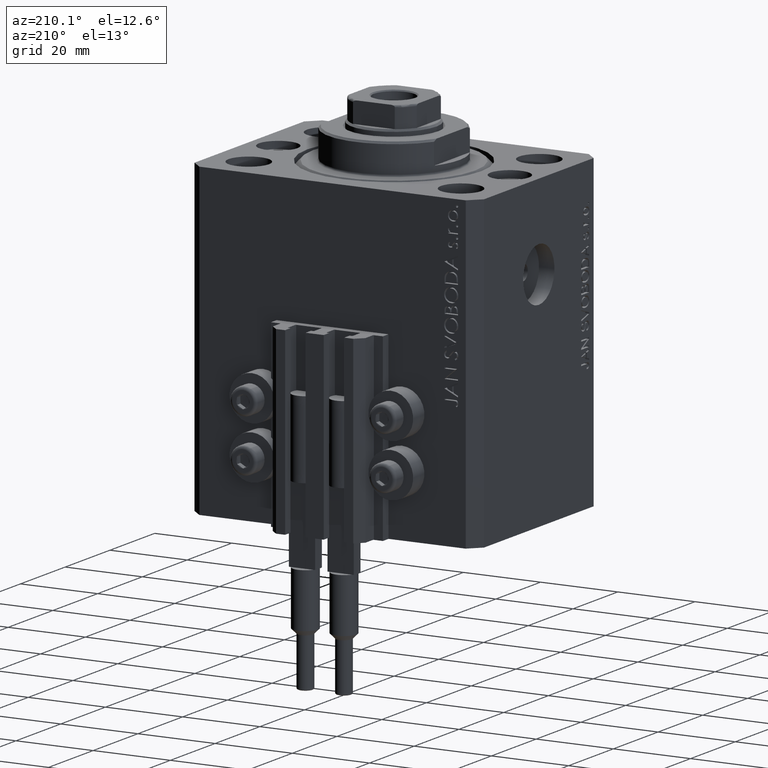
[diagram: clean part render]
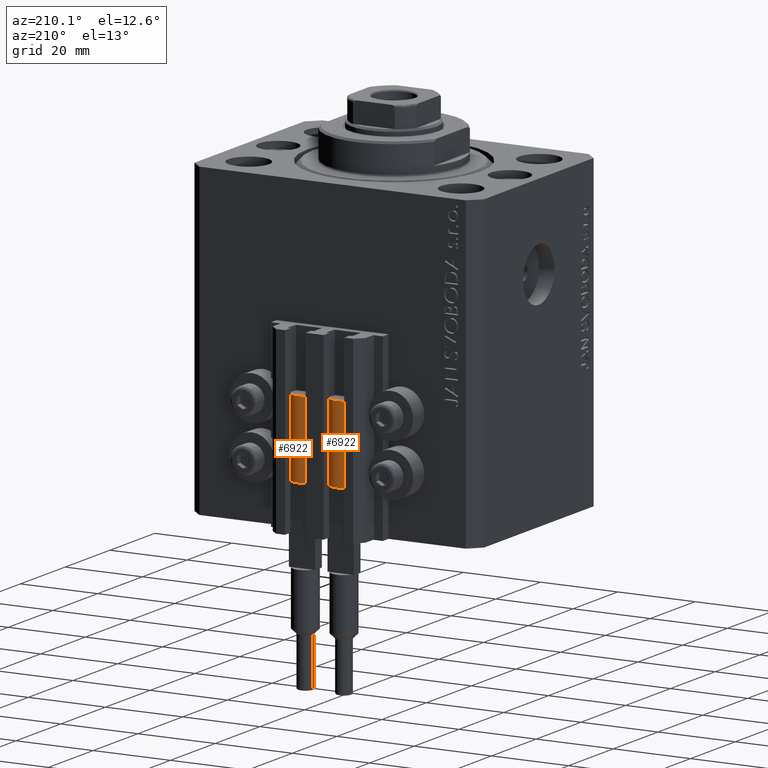
[diagram: same view with one multi-face feature highlighted, each face labeled with its STEP entity id]
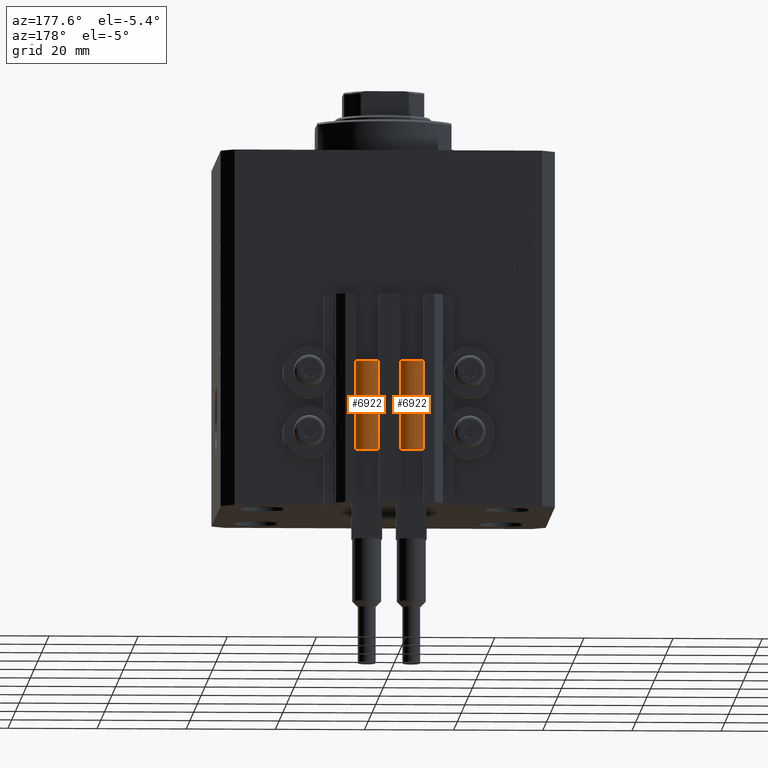
[diagram: same view with one multi-face feature highlighted, each face labeled with its STEP entity id]
A machine part, auxiliary view. The highlighted faces form ONE feature: a constant-radius fillet chain: 2 tangent blend faces with common blend radius 3.4 mm. The faces share edges in the B-rep.
A second angle (auxiliary view) of the same feature is appended — it is thin or edge-on in the first view.
Their STEP definitions:
[1] entity #6922 (Cylinder):
#728 = FACE_OUTER_BOUND ( 'NONE', #41909, .T. ) ;
#1817 = DIRECTION ( 'NONE',  ( 1.000000000000000000, 0.000000000000000000, 0.000000000000000000 ) ) ;
#2697 = CIRCLE ( 'NONE', #23665, 3.400000000000000355 ) ;
#4511 = CARTESIAN_POINT ( 'NONE',  ( 0.000000000000000000, 0.000000000000000000, 20.00000000000000000 ) ) ;
#4609 = DIRECTION ( 'NONE',  ( -0.000000000000000000, -0.000000000000000000, -1.000000000000000000 ) ) ;
#4810 = ORIENTED_EDGE ( 'NONE', *, *, #26249, .T. ) ;
#5483 = ORIENTED_EDGE ( 'NONE', *, *, #36832, .T. ) ;
#6580 = ORIENTED_EDGE ( 'NONE', *, *, #13697, .F. ) ;
#6922 = ADVANCED_FACE ( 'NONE', ( #728 ), #15557, .T. ) ;
#7851 = CIRCLE ( 'NONE', #43511, 3.400000000000000355 ) ;
#11920 = CARTESIAN_POINT ( 'NONE',  ( 0.000000000000000000, 0.000000000000000000, 20.00000000000000000 ) ) ;
#12383 = DIRECTION ( 'NONE',  ( -1.000000000000000000, 0.000000000000000000, 0.000000000000000000 ) ) ;
#13697 = EDGE_CURVE ( 'NONE', #29974, #29248, #7851, .T. ) ;
#15431 = VECTOR ( 'NONE', #43205, 1000.000000000000000 ) ;
#15557 = CYLINDRICAL_SURFACE ( 'NONE', #17352, 3.400000000000000355 ) ;
#17352 = AXIS2_PLACEMENT_3D ( 'NONE', #11920, #4609, #12383 ) ;
#17661 = LINE ( 'NONE', #28566, #40847 ) ;
#18398 = CARTESIAN_POINT ( 'NONE',  ( 3.400000000000000355, 4.163799117101001052E-16, 0.000000000000000000 ) ) ;
#18870 = DIRECTION ( 'NONE',  ( 0.000000000000000000, 0.000000000000000000, 1.000000000000000000 ) ) ;
#20196 = AXIS2_PLACEMENT_3D ( 'NONE', #25693, #47795, #47289 ) ;
#20202 = EDGE_CURVE ( 'NONE', #29248, #30517, #28217, .T. ) ;
#20832 = CARTESIAN_POINT ( 'NONE',  ( -3.051229260478471428, -1.500000000000000000, 20.00000000000000000 ) ) ;
#21342 = CARTESIAN_POINT ( 'NONE',  ( -3.400000000000000355, 0.000000000000000000, 20.00000000000000000 ) ) ;
#21510 = CARTESIAN_POINT ( 'NONE',  ( 3.051229260478471428, -1.500000000000000000, 20.00000000000000000 ) ) ;
#21945 = VERTEX_POINT ( 'NONE', #18398 ) ;
#22085 = VERTEX_POINT ( 'NONE', #27360 ) ;
#23592 = ORIENTED_EDGE ( 'NONE', *, *, #20202, .F. ) ;
#23665 = AXIS2_PLACEMENT_3D ( 'NONE', #25213, #40994, #29101 ) ;
#25213 = CARTESIAN_POINT ( 'NONE',  ( 0.000000000000000000, 0.000000000000000000, 0.000000000000000000 ) ) ;
#25693 = CARTESIAN_POINT ( 'NONE',  ( 0.000000000000000000, 0.000000000000000000, 20.00000000000000000 ) ) ;
#26249 = EDGE_CURVE ( 'NONE', #32559, #21945, #2697, .T. ) ;
#27360 = CARTESIAN_POINT ( 'NONE',  ( 3.400000000000000355, 0.000000000000000000, 20.00000000000000000 ) ) ;
#27457 = ORIENTED_EDGE ( 'NONE', *, *, #31979, .F. ) ;
#28217 = CIRCLE ( 'NONE', #38295, 3.400000000000000355 ) ;
#28566 = CARTESIAN_POINT ( 'NONE',  ( 3.400000000000000355, 4.163799117101001052E-16, 20.00000000000000000 ) ) ;
#29101 = DIRECTION ( 'NONE',  ( 1.000000000000000000, 0.000000000000000000, 0.000000000000000000 ) ) ;
#29248 = VERTEX_POINT ( 'NONE', #20832 ) ;
#29974 = VERTEX_POINT ( 'NONE', #39121 ) ;
#30504 = ORIENTED_EDGE ( 'NONE', *, *, #37567, .F. ) ;
#30517 = VERTEX_POINT ( 'NONE', #21510 ) ;
#31979 = EDGE_CURVE ( 'NONE', #22085, #21945, #17661, .T. ) ;
#32559 = VERTEX_POINT ( 'NONE', #35278 ) ;
#33677 = CARTESIAN_POINT ( 'NONE',  ( 0.000000000000000000, 0.000000000000000000, 20.00000000000000000 ) ) ;
#34152 = DIRECTION ( 'NONE',  ( 1.000000000000000000, 0.000000000000000000, 0.000000000000000000 ) ) ;
#35278 = CARTESIAN_POINT ( 'NONE',  ( -3.400000000000000355, 0.000000000000000000, 0.000000000000000000 ) ) ;
#36832 = EDGE_CURVE ( 'NONE', #29974, #32559, #47551, .T. ) ;
#37567 = EDGE_CURVE ( 'NONE', #30517, #22085, #47309, .T. ) ;
#38295 = AXIS2_PLACEMENT_3D ( 'NONE', #33677, #18870, #34152 ) ;
#39121 = CARTESIAN_POINT ( 'NONE',  ( -3.399999999999999467, -4.915049848600952119E-16, 20.00000000000000000 ) ) ;
#40847 = VECTOR ( 'NONE', #43630, 1000.000000000000000 ) ;
#40994 = DIRECTION ( 'NONE',  ( 0.000000000000000000, 0.000000000000000000, 1.000000000000000000 ) ) ;
#41909 = EDGE_LOOP ( 'NONE', ( #27457, #30504, #23592, #6580, #5483, #4810 ) ) ;
#43205 = DIRECTION ( 'NONE',  ( -0.000000000000000000, -0.000000000000000000, -1.000000000000000000 ) ) ;
#43511 = AXIS2_PLACEMENT_3D ( 'NONE', #4511, #45532, #1817 ) ;
#43630 = DIRECTION ( 'NONE',  ( -0.000000000000000000, -0.000000000000000000, -1.000000000000000000 ) ) ;
#45532 = DIRECTION ( 'NONE',  ( 0.000000000000000000, 0.000000000000000000, 1.000000000000000000 ) ) ;
#47289 = DIRECTION ( 'NONE',  ( 1.000000000000000000, 0.000000000000000000, 0.000000000000000000 ) ) ;
#47309 = CIRCLE ( 'NONE', #20196, 3.400000000000000355 ) ;
#47551 = LINE ( 'NONE', #21342, #15431 ) ;
#47795 = DIRECTION ( 'NONE',  ( 0.000000000000000000, 0.000000000000000000, 1.000000000000000000 ) ) ;
[2] entity #6922 (Cylinder):
#728 = FACE_OUTER_BOUND ( 'NONE', #41909, .T. ) ;
#1817 = DIRECTION ( 'NONE',  ( 1.000000000000000000, 0.000000000000000000, 0.000000000000000000 ) ) ;
#2697 = CIRCLE ( 'NONE', #23665, 3.400000000000000355 ) ;
#4511 = CARTESIAN_POINT ( 'NONE',  ( 0.000000000000000000, 0.000000000000000000, 20.00000000000000000 ) ) ;
#4609 = DIRECTION ( 'NONE',  ( -0.000000000000000000, -0.000000000000000000, -1.000000000000000000 ) ) ;
#4810 = ORIENTED_EDGE ( 'NONE', *, *, #26249, .T. ) ;
#5483 = ORIENTED_EDGE ( 'NONE', *, *, #36832, .T. ) ;
#6580 = ORIENTED_EDGE ( 'NONE', *, *, #13697, .F. ) ;
#6922 = ADVANCED_FACE ( 'NONE', ( #728 ), #15557, .T. ) ;
#7851 = CIRCLE ( 'NONE', #43511, 3.400000000000000355 ) ;
#11920 = CARTESIAN_POINT ( 'NONE',  ( 0.000000000000000000, 0.000000000000000000, 20.00000000000000000 ) ) ;
#12383 = DIRECTION ( 'NONE',  ( -1.000000000000000000, 0.000000000000000000, 0.000000000000000000 ) ) ;
#13697 = EDGE_CURVE ( 'NONE', #29974, #29248, #7851, .T. ) ;
#15431 = VECTOR ( 'NONE', #43205, 1000.000000000000000 ) ;
#15557 = CYLINDRICAL_SURFACE ( 'NONE', #17352, 3.400000000000000355 ) ;
#17352 = AXIS2_PLACEMENT_3D ( 'NONE', #11920, #4609, #12383 ) ;
#17661 = LINE ( 'NONE', #28566, #40847 ) ;
#18398 = CARTESIAN_POINT ( 'NONE',  ( 3.400000000000000355, 4.163799117101001052E-16, 0.000000000000000000 ) ) ;
#18870 = DIRECTION ( 'NONE',  ( 0.000000000000000000, 0.000000000000000000, 1.000000000000000000 ) ) ;
#20196 = AXIS2_PLACEMENT_3D ( 'NONE', #25693, #47795, #47289 ) ;
#20202 = EDGE_CURVE ( 'NONE', #29248, #30517, #28217, .T. ) ;
#20832 = CARTESIAN_POINT ( 'NONE',  ( -3.051229260478471428, -1.500000000000000000, 20.00000000000000000 ) ) ;
#21342 = CARTESIAN_POINT ( 'NONE',  ( -3.400000000000000355, 0.000000000000000000, 20.00000000000000000 ) ) ;
#21510 = CARTESIAN_POINT ( 'NONE',  ( 3.051229260478471428, -1.500000000000000000, 20.00000000000000000 ) ) ;
#21945 = VERTEX_POINT ( 'NONE', #18398 ) ;
#22085 = VERTEX_POINT ( 'NONE', #27360 ) ;
#23592 = ORIENTED_EDGE ( 'NONE', *, *, #20202, .F. ) ;
#23665 = AXIS2_PLACEMENT_3D ( 'NONE', #25213, #40994, #29101 ) ;
#25213 = CARTESIAN_POINT ( 'NONE',  ( 0.000000000000000000, 0.000000000000000000, 0.000000000000000000 ) ) ;
#25693 = CARTESIAN_POINT ( 'NONE',  ( 0.000000000000000000, 0.000000000000000000, 20.00000000000000000 ) ) ;
#26249 = EDGE_CURVE ( 'NONE', #32559, #21945, #2697, .T. ) ;
#27360 = CARTESIAN_POINT ( 'NONE',  ( 3.400000000000000355, 0.000000000000000000, 20.00000000000000000 ) ) ;
#27457 = ORIENTED_EDGE ( 'NONE', *, *, #31979, .F. ) ;
#28217 = CIRCLE ( 'NONE', #38295, 3.400000000000000355 ) ;
#28566 = CARTESIAN_POINT ( 'NONE',  ( 3.400000000000000355, 4.163799117101001052E-16, 20.00000000000000000 ) ) ;
#29101 = DIRECTION ( 'NONE',  ( 1.000000000000000000, 0.000000000000000000, 0.000000000000000000 ) ) ;
#29248 = VERTEX_POINT ( 'NONE', #20832 ) ;
#29974 = VERTEX_POINT ( 'NONE', #39121 ) ;
#30504 = ORIENTED_EDGE ( 'NONE', *, *, #37567, .F. ) ;
#30517 = VERTEX_POINT ( 'NONE', #21510 ) ;
#31979 = EDGE_CURVE ( 'NONE', #22085, #21945, #17661, .T. ) ;
#32559 = VERTEX_POINT ( 'NONE', #35278 ) ;
#33677 = CARTESIAN_POINT ( 'NONE',  ( 0.000000000000000000, 0.000000000000000000, 20.00000000000000000 ) ) ;
#34152 = DIRECTION ( 'NONE',  ( 1.000000000000000000, 0.000000000000000000, 0.000000000000000000 ) ) ;
#35278 = CARTESIAN_POINT ( 'NONE',  ( -3.400000000000000355, 0.000000000000000000, 0.000000000000000000 ) ) ;
#36832 = EDGE_CURVE ( 'NONE', #29974, #32559, #47551, .T. ) ;
#37567 = EDGE_CURVE ( 'NONE', #30517, #22085, #47309, .T. ) ;
#38295 = AXIS2_PLACEMENT_3D ( 'NONE', #33677, #18870, #34152 ) ;
#39121 = CARTESIAN_POINT ( 'NONE',  ( -3.399999999999999467, -4.915049848600952119E-16, 20.00000000000000000 ) ) ;
#40847 = VECTOR ( 'NONE', #43630, 1000.000000000000000 ) ;
#40994 = DIRECTION ( 'NONE',  ( 0.000000000000000000, 0.000000000000000000, 1.000000000000000000 ) ) ;
#41909 = EDGE_LOOP ( 'NONE', ( #27457, #30504, #23592, #6580, #5483, #4810 ) ) ;
#43205 = DIRECTION ( 'NONE',  ( -0.000000000000000000, -0.000000000000000000, -1.000000000000000000 ) ) ;
#43511 = AXIS2_PLACEMENT_3D ( 'NONE', #4511, #45532, #1817 ) ;
#43630 = DIRECTION ( 'NONE',  ( -0.000000000000000000, -0.000000000000000000, -1.000000000000000000 ) ) ;
#45532 = DIRECTION ( 'NONE',  ( 0.000000000000000000, 0.000000000000000000, 1.000000000000000000 ) ) ;
#47289 = DIRECTION ( 'NONE',  ( 1.000000000000000000, 0.000000000000000000, 0.000000000000000000 ) ) ;
#47309 = CIRCLE ( 'NONE', #20196, 3.400000000000000355 ) ;
#47551 = LINE ( 'NONE', #21342, #15431 ) ;
#47795 = DIRECTION ( 'NONE',  ( 0.000000000000000000, 0.000000000000000000, 1.000000000000000000 ) ) ;